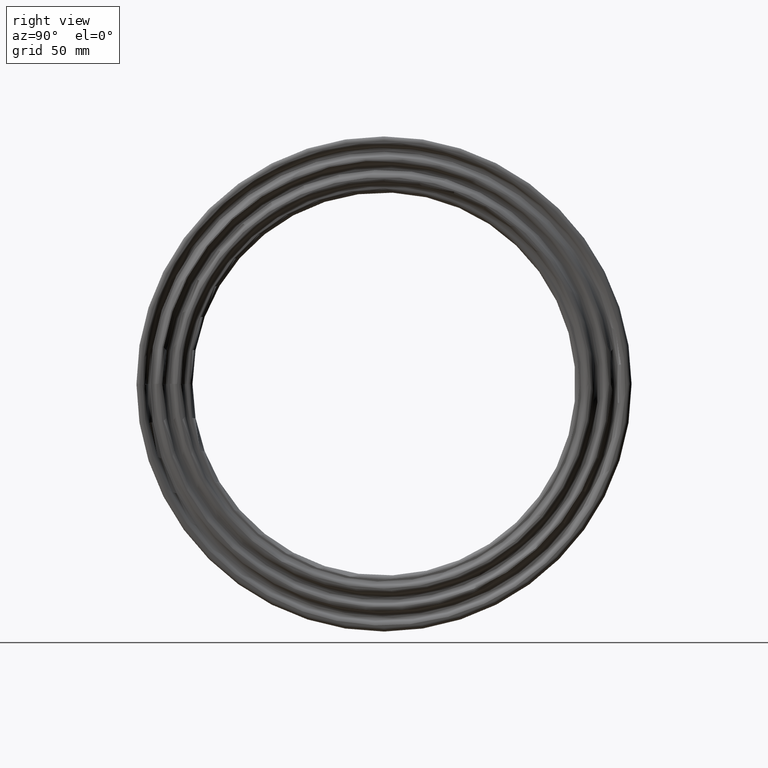
[diagram: clean part render]
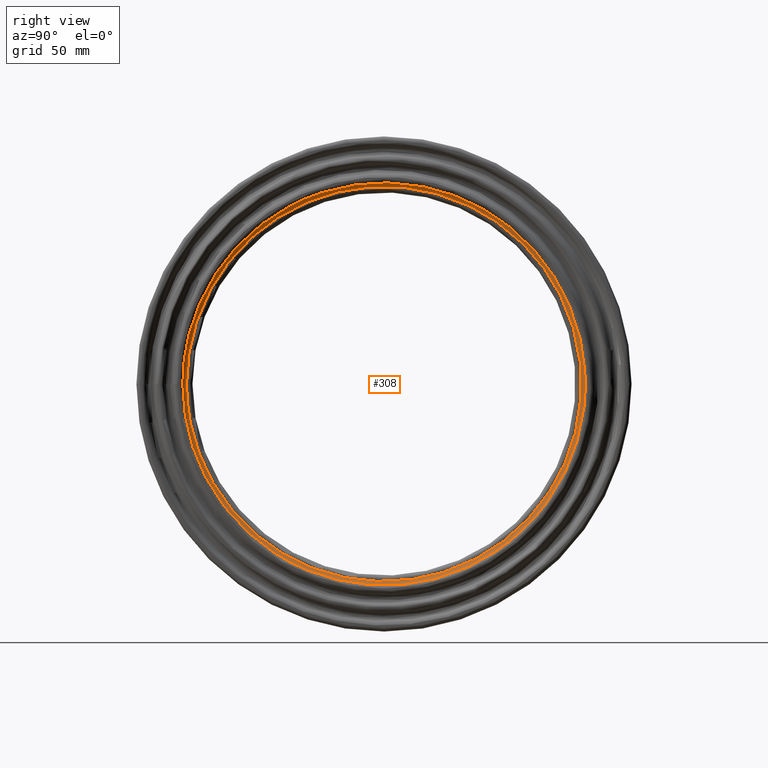
[diagram: same view with one face highlighted and labeled with its STEP entity id]
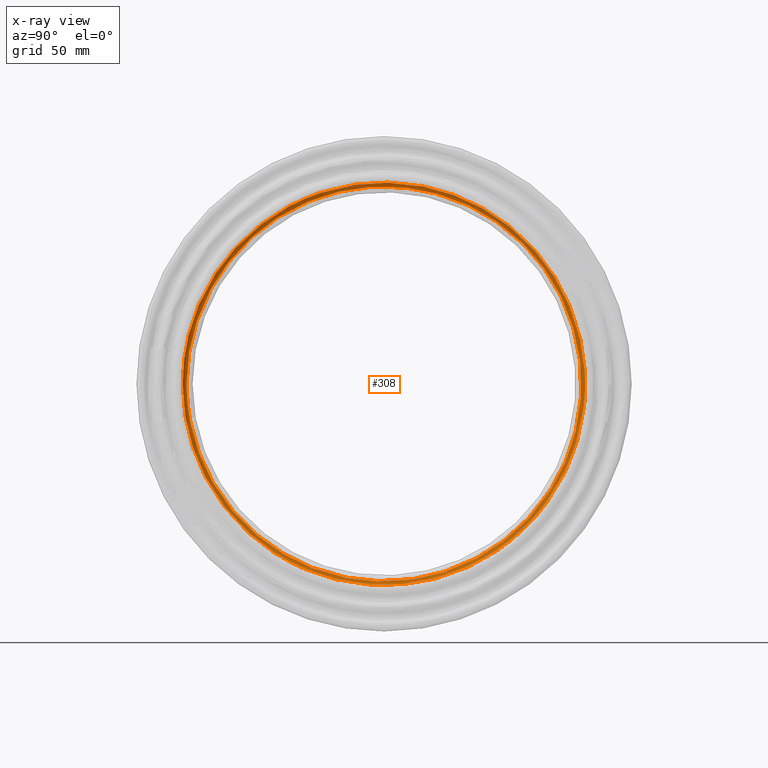
[diagram: x-ray of the same camera — body ghosted, the highlighted face saturated]
A machine part, right view. The second image highlights one B-rep face of the part: STEP entity #308.
The next image is the same camera in x-ray: the body ghosted, the highlighted face saturated — about 0% of this face is hidden behind the body in this view.
In plain terms, the highlighted face is a freeform B-spline surface patch.
Its self-contained STEP definition (entity closure, byte-faithful):
#15=B_SPLINE_SURFACE_WITH_KNOTS('',3,3,((#546,#547,#548,#549,#550,#551,
#552,#553,#554,#555,#556,#557,#558,#559,#560,#561,#562,#563,#564,#565,#566,
#567,#568,#569,#570,#571,#572,#573,#574,#575,#576,#577,#578,#579,#580,#581,
#582,#583,#584,#585,#586,#587,#588,#589,#590,#591,#592,#593,#594,#595,#596,
#597,#598,#599,#600,#601,#602,#603,#604,#605),(#606,#607,#608,#609,#610,
#611,#612,#613,#614,#615,#616,#617,#618,#619,#620,#621,#622,#623,#624,#625,
#626,#627,#628,#629,#630,#631,#632,#633,#634,#635,#636,#637,#638,#639,#640,
#641,#642,#643,#644,#645,#646,#647,#648,#649,#650,#651,#652,#653,#654,#655,
#656,#657,#658,#659,#660,#661,#662,#663,#664,#665),(#666,#667,#668,#669,
#670,#671,#672,#673,#674,#675,#676,#677,#678,#679,#680,#681,#682,#683,#684,
#685,#686,#687,#688,#689,#690,#691,#692,#693,#694,#695,#696,#697,#698,#699,
#700,#701,#702,#703,#704,#705,#706,#707,#708,#709,#710,#711,#712,#713,#714,
#715,#716,#717,#718,#719,#720,#721,#722,#723,#724,#725),(#726,#727,#728,
#729,#730,#731,#732,#733,#734,#735,#736,#737,#738,#739,#740,#741,#742,#743,
#744,#745,#746,#747,#748,#749,#750,#751,#752,#753,#754,#755,#756,#757,#758,
#759,#760,#761,#762,#763,#764,#765,#766,#767,#768,#769,#770,#771,#772,#773,
#774,#775,#776,#777,#778,#779,#780,#781,#782,#783,#784,#785),(#786,#787,
#788,#789,#790,#791,#792,#793,#794,#795,#796,#797,#798,#799,#800,#801,#802,
#803,#804,#805,#806,#807,#808,#809,#810,#811,#812,#813,#814,#815,#816,#817,
#818,#819,#820,#821,#822,#823,#824,#825,#826,#827,#828,#829,#830,#831,#832,
#833,#834,#835,#836,#837,#838,#839,#840,#841,#842,#843,#844,#845)),
 .UNSPECIFIED.,.F.,.T.,.F.,(4,1,4),(4,1,1,1,1,1,1,1,1,1,1,1,1,1,1,1,1,1,
1,1,1,1,1,1,1,1,1,1,1,1,1,1,1,1,1,1,1,1,1,1,1,1,1,1,1,1,1,1,1,1,1,1,1,1,
1,1,1,4),(0.,0.571428571428571,1.),(38.2405946998797,39.6063302248754,40.9720657498711,
42.3378012748669,43.7035367998626,46.435007849854,47.8007433748497,49.1664788998454,
50.9874595998397,52.8084402998339,54.6294209998282,55.5399113498253,56.4504016998225,
58.2713823998168,60.092363099811,61.0028534498082,61.9133437998053,63.7343244997996,
65.5553051997939,67.3762858997881,69.1972665997824,71.0182472997767,71.9287376497738,
74.6602086997652,77.3916797497566,78.3021700997538,80.1231507997481,80.5783959747466,
81.2612637372445,81.9441314997423,84.6756025497337,87.4070735997252,87.5777905403496,
88.089941362223,90.1385446497166,91.5042801747123,92.870015699708,93.2114495809569,
94.2357512247037,95.6014867496994,95.9429206309483,96.9672222746951,97.308656155944,
98.3329577996908,99.9263159121858,101.974919199679,103.795899899674,104.137333780923,
104.649484602796,105.161635424669,106.527370949665,109.258841999656,109.600275880905,
110.624577524652,111.990313049648,113.356048574644,113.697482455893,114.721784099639),
 .UNSPECIFIED.);
#24=B_SPLINE_CURVE_WITH_KNOTS('',3,(#483,#484,#485,#486,#487,#488,#489,
#490,#491,#492,#493,#494,#495,#496,#497,#498,#499,#500,#501,#502,#503,#504,
#505,#506,#507,#508,#509,#510,#511,#512,#513,#514,#515,#516,#517,#518,#519,
#520,#521,#522,#523,#524,#525,#526,#527,#528,#529,#530,#531,#532,#533,#534,
#535,#536,#537,#538,#539,#540,#541,#542),.UNSPECIFIED.,.T.,.F.,(4,1,1,1,
1,1,1,1,1,1,1,1,1,1,1,1,1,1,1,1,1,1,1,1,1,1,1,1,1,1,1,1,1,1,1,1,1,1,1,1,
1,1,1,1,1,1,1,1,1,1,1,1,1,1,1,1,1,4),(-114.721784099639,-113.697482455893,
-113.356048574644,-111.990313049648,-110.624577524652,-109.600275880905,
-109.258841999656,-106.527370949665,-105.161635424669,-104.649484602796,
-104.137333780923,-103.795899899674,-101.974919199679,-99.9263159121858,
-98.3329577996908,-97.308656155944,-96.9672222746951,-95.9429206309483,
-95.6014867496994,-94.2357512247037,-93.2114495809569,-92.870015699708,
-91.5042801747123,-90.1385446497166,-88.089941362223,-87.5777905403496,
-87.4070735997252,-84.6756025497337,-81.9441314997423,-81.2612637372445,
-80.5783959747466,-80.1231507997481,-78.3021700997538,-77.3916797497566,
-74.6602086997652,-71.9287376497738,-71.0182472997767,-69.1972665997824,
-67.3762858997881,-65.5553051997939,-63.7343244997996,-61.9133437998053,
-61.0028534498082,-60.092363099811,-58.2713823998168,-56.4504016998225,
-55.5399113498253,-54.6294209998282,-52.8084402998339,-50.9874595998397,
-49.1664788998454,-47.8007433748497,-46.435007849854,-43.7035367998626,
-42.3378012748669,-40.9720657498711,-39.6063302248754,-38.2405946998797),
 .UNSPECIFIED.);
#25=B_SPLINE_CURVE_WITH_KNOTS('',3,(#848,#849,#850,#851,#852,#853,#854,
#855,#856,#857,#858,#859,#860,#861,#862,#863,#864,#865,#866,#867,#868,#869,
#870,#871,#872,#873,#874,#875,#876,#877,#878,#879,#880,#881,#882,#883,#884,
#885,#886,#887,#888,#889,#890,#891,#892,#893,#894,#895,#896,#897,#898,#899,
#900,#901,#902,#903,#904,#905,#906,#907),.UNSPECIFIED.,.T.,.F.,(4,1,1,1,
1,1,1,1,1,1,1,1,1,1,1,1,1,1,1,1,1,1,1,1,1,1,1,1,1,1,1,1,1,1,1,1,1,1,1,1,
1,1,1,1,1,1,1,1,1,1,1,1,1,1,1,1,1,4),(38.2405946998797,39.6063302248754,
40.9720657498711,42.3378012748669,43.7035367998626,46.435007849854,47.8007433748497,
49.1664788998454,50.9874595998397,52.8084402998339,54.6294209998282,55.5399113498253,
56.4504016998225,58.2713823998168,60.092363099811,61.0028534498082,61.9133437998053,
63.7343244997996,65.5553051997939,67.3762858997881,69.1972665997824,71.0182472997767,
71.9287376497738,74.6602086997652,77.3916797497566,78.3021700997538,80.1231507997481,
80.5783959747466,81.2612637372445,81.9441314997423,84.6756025497337,87.4070735997252,
87.5777905403496,88.089941362223,90.1385446497166,91.5042801747123,92.870015699708,
93.2114495809569,94.2357512247037,95.6014867496994,95.9429206309483,96.9672222746951,
97.308656155944,98.3329577996908,99.9263159121858,101.974919199679,103.795899899674,
104.137333780923,104.649484602796,105.161635424669,106.527370949665,109.258841999656,
109.600275880905,110.624577524652,111.990313049648,113.356048574644,113.697482455893,
114.721784099639),.UNSPECIFIED.);
#69=FACE_OUTER_BOUND('',#100,.T.);
#100=EDGE_LOOP('',(#235,#236,#237,#238));
#148=CIRCLE('',#341,2.49999999999999);
#170=VERTEX_POINT('',#482);
#172=VERTEX_POINT('',#846);
#198=EDGE_CURVE('',#170,#170,#24,.T.);
#200=EDGE_CURVE('',#172,#170,#148,.T.);
#201=EDGE_CURVE('',#172,#172,#25,.T.);
#235=ORIENTED_EDGE('',*,*,#200,.T.);
#236=ORIENTED_EDGE('',*,*,#198,.T.);
#237=ORIENTED_EDGE('',*,*,#200,.F.);
#238=ORIENTED_EDGE('',*,*,#201,.T.);
#308=ADVANCED_FACE('',(#69),#15,.T.);
#341=AXIS2_PLACEMENT_3D('',#847,#395,#396);
#395=DIRECTION('center_axis',(0.,0.000811828910623102,-0.999999670466856));
#396=DIRECTION('ref_axis',(-0.4,-0.916514836969052,-0.000744053486856781));
#482=CARTESIAN_POINT('',(128.,-122.459050617382,-0.0994158304195446));
#483=CARTESIAN_POINT('Ctrl Pts',(128.,-122.459058042958,-0.100492250923008));
#484=CARTESIAN_POINT('Ctrl Pts',(128.,-122.462137081849,3.32177095960661));
#485=CARTESIAN_POINT('Ctrl Pts',(128.,-122.275025310245,7.87189128922752));
#486=CARTESIAN_POINT('Ctrl Pts',(128.,-121.388535819742,16.9910339683083));
#487=CARTESIAN_POINT('Ctrl Pts',(128.,-119.66633006052,27.2000556870449));
#488=CARTESIAN_POINT('Ctrl Pts',(128.,-116.166875605104,39.3733919225342));
#489=CARTESIAN_POINT('Ctrl Pts',(128.,-112.791834695813,47.8627411542021));
#490=CARTESIAN_POINT('Ctrl Pts',(128.,-107.049004395079,60.2705007705905));
#491=CARTESIAN_POINT('Ctrl Pts',(128.,-99.0451250536366,73.046323130571));
#492=CARTESIAN_POINT('Ctrl Pts',(128.,-88.7178986493268,84.5957658146479));
#493=CARTESIAN_POINT('Ctrl Pts',(128.,-82.9741710526155,90.1135613763411));
#494=CARTESIAN_POINT('Ctrl Pts',(128.,-79.5433166065945,93.1396578218315));
#495=CARTESIAN_POINT('Ctrl Pts',(128.,-72.6284789384625,98.8326514448616));
#496=CARTESIAN_POINT('Ctrl Pts',(128.,-60.8414288512584,106.872382220134));
#497=CARTESIAN_POINT('Ctrl Pts',(128.,-44.2618054179648,114.669497347039));
#498=CARTESIAN_POINT('Ctrl Pts',(128.,-29.2691219392055,119.157615499959));
#499=CARTESIAN_POINT('Ctrl Pts',(128.,-19.4396504449831,120.978125497897));
#500=CARTESIAN_POINT('Ctrl Pts',(128.,-11.4771094203487,121.989741037058));
#501=CARTESIAN_POINT('Ctrl Pts',(128.,-5.7468193620638,122.393731874944));
#502=CARTESIAN_POINT('Ctrl Pts',(128.,3.36561214263529,122.523615368077));
#503=CARTESIAN_POINT('Ctrl Pts',(128.,12.4946297762966,122.020215253236));
#504=CARTESIAN_POINT('Ctrl Pts',(128.,21.5934085090093,120.611091905303));
#505=CARTESIAN_POINT('Ctrl Pts',(128.,30.580176201898,118.697589514062));
#506=CARTESIAN_POINT('Ctrl Pts',(128.,40.5382369839896,115.824292943709));
#507=CARTESIAN_POINT('Ctrl Pts',(128.,55.2722132664164,109.728827301121));
#508=CARTESIAN_POINT('Ctrl Pts',(128.,66.7092467451824,102.999614949993));
#509=CARTESIAN_POINT('Ctrl Pts',(128.,74.0937366024141,97.5234211345415));
#510=CARTESIAN_POINT('Ctrl Pts',(128.,83.1135460704598,90.4253584122818));
#511=CARTESIAN_POINT('Ctrl Pts',(128.,96.4682421283379,77.0986771739098));
#512=CARTESIAN_POINT('Ctrl Pts',(128.,107.614722926459,59.3949193025453));
#513=CARTESIAN_POINT('Ctrl Pts',(128.,113.188519468817,46.8974360988697));
#514=CARTESIAN_POINT('Ctrl Pts',(128.,115.362113098601,41.2193074366228));
#515=CARTESIAN_POINT('Ctrl Pts',(128.,118.466566258768,31.7976789138544));
#516=CARTESIAN_POINT('Ctrl Pts',(128.,120.867448068904,21.2888878037509));
#517=CARTESIAN_POINT('Ctrl Pts',(128.,122.913957441559,3.05837097254548));
#518=CARTESIAN_POINT('Ctrl Pts',(128.,122.115785054967,-18.3162417045906));
#519=CARTESIAN_POINT('Ctrl Pts',(128.,116.590093788173,-39.0386133880449));
#520=CARTESIAN_POINT('Ctrl Pts',(128.,109.318593058096,-55.7661789375047));
#521=CARTESIAN_POINT('Ctrl Pts',(128.,101.70617086988,-69.0378045923205));
#522=CARTESIAN_POINT('Ctrl Pts',(128.,90.1935615703965,-83.5065468418019));
#523=CARTESIAN_POINT('Ctrl Pts',(128.,76.8396490012886,-95.9318495595328));
#524=CARTESIAN_POINT('Ctrl Pts',(128.,61.6180984673473,-106.366888004346));
#525=CARTESIAN_POINT('Ctrl Pts',(128.,47.7985678357714,-113.032389423036));
#526=CARTESIAN_POINT('Ctrl Pts',(128.,36.3392510704786,-117.060198396686));
#527=CARTESIAN_POINT('Ctrl Pts',(128.,24.5355317967793,-120.253334800662));
#528=CARTESIAN_POINT('Ctrl Pts',(128.,9.30145102200197,-122.564257530456));
#529=CARTESIAN_POINT('Ctrl Pts',(128.,-5.94311760942025,-122.579474916451));
#530=CARTESIAN_POINT('Ctrl Pts',(128.,-18.0591925185306,-121.235306363289));
#531=CARTESIAN_POINT('Ctrl Pts',(128.,-30.1323937747762,-118.974636248499));
#532=CARTESIAN_POINT('Ctrl Pts',(128.,-44.8027346875423,-114.455372153444));
#533=CARTESIAN_POINT('Ctrl Pts',(128.,-61.2594956300432,-106.560847786675));
#534=CARTESIAN_POINT('Ctrl Pts',(128.,-75.2859929302152,-97.0403800348178));
#535=CARTESIAN_POINT('Ctrl Pts',(128.,-86.6870098196937,-86.8491262986416));
#536=CARTESIAN_POINT('Ctrl Pts',(128.,-98.8719284884497,-73.2757186355523));
#537=CARTESIAN_POINT('Ctrl Pts',(128.,-108.786282519494,-57.5336812063203));
#538=CARTESIAN_POINT('Ctrl Pts',(128.,-115.773659409927,-40.6727363180451));
#539=CARTESIAN_POINT('Ctrl Pts',(128.,-119.607236452051,-27.4663810030126));
#540=CARTESIAN_POINT('Ctrl Pts',(128.,-121.936829469286,-13.8239378514909));
#541=CARTESIAN_POINT('Ctrl Pts',(128.,-122.454952657771,-4.6635098649627));
#542=CARTESIAN_POINT('Ctrl Pts',(128.,-122.459058042958,-0.10049225092322));
#546=CARTESIAN_POINT('Ctrl Pts',(128.,-122.459058042958,-0.100492250923007));
#547=CARTESIAN_POINT('Ctrl Pts',(128.,-122.454952657771,-4.66350986496249));
#548=CARTESIAN_POINT('Ctrl Pts',(128.,-121.936829469286,-13.8239378514909));
#549=CARTESIAN_POINT('Ctrl Pts',(128.,-119.607236452051,-27.4663810030126));
#550=CARTESIAN_POINT('Ctrl Pts',(128.,-115.773659409927,-40.6727363180451));
#551=CARTESIAN_POINT('Ctrl Pts',(128.,-108.786282519494,-57.5336812063203));
#552=CARTESIAN_POINT('Ctrl Pts',(128.,-98.8719284884497,-73.2757186355523));
#553=CARTESIAN_POINT('Ctrl Pts',(128.,-86.6870098196937,-86.8491262986416));
#554=CARTESIAN_POINT('Ctrl Pts',(128.,-75.2859929302152,-97.0403800348178));
#555=CARTESIAN_POINT('Ctrl Pts',(128.,-61.2594956300432,-106.560847786675));
#556=CARTESIAN_POINT('Ctrl Pts',(128.,-44.8027346875423,-114.455372153444));
#557=CARTESIAN_POINT('Ctrl Pts',(128.,-30.1323937747762,-118.974636248499));
#558=CARTESIAN_POINT('Ctrl Pts',(128.,-18.0591925185306,-121.235306363289));
#559=CARTESIAN_POINT('Ctrl Pts',(128.,-5.94311760942025,-122.579474916451));
#560=CARTESIAN_POINT('Ctrl Pts',(128.,9.30145102200197,-122.564257530456));
#561=CARTESIAN_POINT('Ctrl Pts',(128.,24.5355317967793,-120.253334800662));
#562=CARTESIAN_POINT('Ctrl Pts',(128.,36.3392510704786,-117.060198396686));
#563=CARTESIAN_POINT('Ctrl Pts',(128.,47.7985678357714,-113.032389423036));
#564=CARTESIAN_POINT('Ctrl Pts',(128.,61.6180984673473,-106.366888004346));
#565=CARTESIAN_POINT('Ctrl Pts',(128.,76.8396490012886,-95.9318495595328));
#566=CARTESIAN_POINT('Ctrl Pts',(128.,90.1935615703965,-83.5065468418019));
#567=CARTESIAN_POINT('Ctrl Pts',(128.,101.70617086988,-69.0378045923205));
#568=CARTESIAN_POINT('Ctrl Pts',(128.,109.318593058096,-55.7661789375047));
#569=CARTESIAN_POINT('Ctrl Pts',(128.,116.590093788173,-39.0386133880449));
#570=CARTESIAN_POINT('Ctrl Pts',(128.,122.115785054967,-18.3162417045906));
#571=CARTESIAN_POINT('Ctrl Pts',(128.,122.913957441559,3.05837097254548));
#572=CARTESIAN_POINT('Ctrl Pts',(128.,120.867448068904,21.2888878037509));
#573=CARTESIAN_POINT('Ctrl Pts',(128.,118.466566258768,31.7976789138544));
#574=CARTESIAN_POINT('Ctrl Pts',(128.,115.362113098601,41.2193074366228));
#575=CARTESIAN_POINT('Ctrl Pts',(128.,113.188519468817,46.8974360988697));
#576=CARTESIAN_POINT('Ctrl Pts',(128.,107.614722926459,59.3949193025453));
#577=CARTESIAN_POINT('Ctrl Pts',(128.,96.4682421283379,77.0986771739098));
#578=CARTESIAN_POINT('Ctrl Pts',(128.,83.1135460704598,90.4253584122818));
#579=CARTESIAN_POINT('Ctrl Pts',(128.,74.0937366024141,97.5234211345415));
#580=CARTESIAN_POINT('Ctrl Pts',(128.,66.7092467451824,102.999614949993));
#581=CARTESIAN_POINT('Ctrl Pts',(128.,55.2722132664164,109.728827301121));
#582=CARTESIAN_POINT('Ctrl Pts',(128.,40.5382369839896,115.824292943709));
#583=CARTESIAN_POINT('Ctrl Pts',(128.,30.580176201898,118.697589514062));
#584=CARTESIAN_POINT('Ctrl Pts',(128.,21.5934085090093,120.611091905303));
#585=CARTESIAN_POINT('Ctrl Pts',(128.,12.4946297762966,122.020215253236));
#586=CARTESIAN_POINT('Ctrl Pts',(128.,3.36561214263529,122.523615368077));
#587=CARTESIAN_POINT('Ctrl Pts',(128.,-5.7468193620638,122.393731874944));
#588=CARTESIAN_POINT('Ctrl Pts',(128.,-11.4771094203487,121.989741037058));
#589=CARTESIAN_POINT('Ctrl Pts',(128.,-19.4396504449831,120.978125497897));
#590=CARTESIAN_POINT('Ctrl Pts',(128.,-29.2691219392055,119.157615499959));
#591=CARTESIAN_POINT('Ctrl Pts',(128.,-44.2618054179648,114.669497347039));
#592=CARTESIAN_POINT('Ctrl Pts',(128.,-60.8414288512584,106.872382220134));
#593=CARTESIAN_POINT('Ctrl Pts',(128.,-72.6284789384625,98.8326514448616));
#594=CARTESIAN_POINT('Ctrl Pts',(128.,-79.5433166065945,93.1396578218315));
#595=CARTESIAN_POINT('Ctrl Pts',(128.,-82.9741710526155,90.1135613763411));
#596=CARTESIAN_POINT('Ctrl Pts',(128.,-88.7178986493268,84.5957658146479));
#597=CARTESIAN_POINT('Ctrl Pts',(128.,-99.0451250536366,73.046323130571));
#598=CARTESIAN_POINT('Ctrl Pts',(128.,-107.049004395079,60.2705007705905));
#599=CARTESIAN_POINT('Ctrl Pts',(128.,-112.791834695813,47.8627411542021));
#600=CARTESIAN_POINT('Ctrl Pts',(128.,-116.166875605104,39.3733919225342));
#601=CARTESIAN_POINT('Ctrl Pts',(128.,-119.66633006052,27.2000556870449));
#602=CARTESIAN_POINT('Ctrl Pts',(128.,-121.388535819742,16.9910339683083));
#603=CARTESIAN_POINT('Ctrl Pts',(128.,-122.275025310245,7.87189128922752));
#604=CARTESIAN_POINT('Ctrl Pts',(128.,-122.462137081849,3.32177095960661));
#605=CARTESIAN_POINT('Ctrl Pts',(128.,-122.459058042958,-0.100492250923007));
#606=CARTESIAN_POINT('Ctrl Pts',(128.,-123.011096017456,-0.100948712166627));
#607=CARTESIAN_POINT('Ctrl Pts',(128.,-123.006972099663,-4.68453626279056));
#608=CARTESIAN_POINT('Ctrl Pts',(128.,-122.486513687954,-13.8862533215314));
#609=CARTESIAN_POINT('Ctrl Pts',(128.,-120.146419020079,-27.5901952063248));
#610=CARTESIAN_POINT('Ctrl Pts',(128.,-116.295561110779,-40.8560848475345));
#611=CARTESIAN_POINT('Ctrl Pts',(128.,-109.276681501123,-57.7930448290249));
#612=CARTESIAN_POINT('Ctrl Pts',(128.,-99.3176404574985,-73.6060363699534));
#613=CARTESIAN_POINT('Ctrl Pts',(128.,-87.0777886591031,-87.2406385369529));
#614=CARTESIAN_POINT('Ctrl Pts',(128.,-75.6253742220979,-97.4778341112051));
#615=CARTESIAN_POINT('Ctrl Pts',(128.,-61.5356561985723,-107.041214501292));
#616=CARTESIAN_POINT('Ctrl Pts',(128.,-45.0046942937032,-114.971333565491));
#617=CARTESIAN_POINT('Ctrl Pts',(128.,-30.2682341416935,-119.510965072421));
#618=CARTESIAN_POINT('Ctrl Pts',(128.,-18.1406052434074,-121.78182739646));
#619=CARTESIAN_POINT('Ctrl Pts',(128.,-5.96990803932605,-123.132056070849));
#620=CARTESIAN_POINT('Ctrl Pts',(128.,9.34338183084822,-123.116769541231));
#621=CARTESIAN_POINT('Ctrl Pts',(128.,24.6461374003974,-120.795429519825));
#622=CARTESIAN_POINT('Ctrl Pts',(128.,36.5030650874248,-117.587899038001));
#623=CARTESIAN_POINT('Ctrl Pts',(128.,48.014046404782,-113.541930506616));
#624=CARTESIAN_POINT('Ctrl Pts',(128.,61.8958682972406,-106.846383403571));
#625=CARTESIAN_POINT('Ctrl Pts',(128.,77.1860342208905,-96.3643074271789));
#626=CARTESIAN_POINT('Ctrl Pts',(128.,90.6001501728618,-83.8829881172861));
#627=CARTESIAN_POINT('Ctrl Pts',(128.,102.164655330071,-69.3490231612633));
#628=CARTESIAN_POINT('Ctrl Pts',(128.,109.811394708728,-56.0175707161365));
#629=CARTESIAN_POINT('Ctrl Pts',(128.,117.115675443188,-39.2145934063983));
#630=CARTESIAN_POINT('Ctrl Pts',(128.,122.666275404151,-18.398816611877));
#631=CARTESIAN_POINT('Ctrl Pts',(128.,123.468045928421,3.07216393236208));
#632=CARTESIAN_POINT('Ctrl Pts',(128.,121.412312022609,21.3848519535214));
#633=CARTESIAN_POINT('Ctrl Pts',(128.,119.000605898046,31.9410220111259));
#634=CARTESIAN_POINT('Ctrl Pts',(128.,115.882159998154,41.4051182834921));
#635=CARTESIAN_POINT('Ctrl Pts',(128.,113.698765362046,47.1088486469384));
#636=CARTESIAN_POINT('Ctrl Pts',(128.,108.099843515531,59.6626699658552));
#637=CARTESIAN_POINT('Ctrl Pts',(128.,96.9031148559895,77.4462310924662));
#638=CARTESIAN_POINT('Ctrl Pts',(128.,83.4882184306394,90.8329905598156));
#639=CARTESIAN_POINT('Ctrl Pts',(128.,74.4277461173693,97.963050960074));
#640=CARTESIAN_POINT('Ctrl Pts',(128.,67.0099593124888,103.463936539074));
#641=CARTESIAN_POINT('Ctrl Pts',(128.,55.5213865110371,110.223473690124));
#642=CARTESIAN_POINT('Ctrl Pts',(128.,40.7209745086597,116.346424261699));
#643=CARTESIAN_POINT('Ctrl Pts',(128.,30.7180372807939,119.232669200396));
#644=CARTESIAN_POINT('Ctrl Pts',(128.,21.6907454501492,121.154800346083));
#645=CARTESIAN_POINT('Ctrl Pts',(128.,12.5509597542135,122.57027433025));
#646=CARTESIAN_POINT('Ctrl Pts',(128.,3.38078487136079,123.075944620946));
#647=CARTESIAN_POINT('Ctrl Pts',(128.,-5.77272758699882,122.94547516977));
#648=CARTESIAN_POINT('Ctrl Pts',(128.,-11.5288466316984,122.539663761309));
#649=CARTESIAN_POINT('Ctrl Pts',(128.,-19.5272829686194,121.52348744526));
#650=CARTESIAN_POINT('Ctrl Pts',(128.,-29.4010661099547,119.69477091569));
#651=CARTESIAN_POINT('Ctrl Pts',(128.,-44.461334040154,115.186420666494));
#652=CARTESIAN_POINT('Ctrl Pts',(128.,-61.1157006344307,107.354155497427));
#653=CARTESIAN_POINT('Ctrl Pts',(128.,-72.9558813356654,99.2781844380452));
#654=CARTESIAN_POINT('Ctrl Pts',(128.,-79.9018920051052,93.5595270169617));
#655=CARTESIAN_POINT('Ctrl Pts',(128.,-83.3482144564477,90.5197864750096));
#656=CARTESIAN_POINT('Ctrl Pts',(128.,-89.1178375317891,84.9771159374893));
#657=CARTESIAN_POINT('Ctrl Pts',(128.,-99.4916152999223,73.3756060548259));
#658=CARTESIAN_POINT('Ctrl Pts',(128.,-107.531571430472,60.5422058165587));
#659=CARTESIAN_POINT('Ctrl Pts',(128.,-113.30029390198,48.0785014970673));
#660=CARTESIAN_POINT('Ctrl Pts',(128.,-116.690549329239,39.5508852222006));
#661=CARTESIAN_POINT('Ctrl Pts',(128.,-120.205778607942,27.3226697028125));
#662=CARTESIAN_POINT('Ctrl Pts',(128.,-121.93574755909,17.0676329699906));
#663=CARTESIAN_POINT('Ctrl Pts',(128.,-122.826233907547,7.90737626736537));
#664=CARTESIAN_POINT('Ctrl Pts',(128.,-123.0141889558,3.33674195080133));
#665=CARTESIAN_POINT('Ctrl Pts',(128.,-123.011096017456,-0.100948712166627));
#666=CARTESIAN_POINT('Ctrl Pts',(128.332453996569,-123.973954029769,-0.101734556007417));
#667=CARTESIAN_POINT('Ctrl Pts',(128.332453996569,-123.969797864707,-4.72119955119507));
#668=CARTESIAN_POINT('Ctrl Pts',(128.332453996569,-123.445265055466,-13.9949491960375));
#669=CARTESIAN_POINT('Ctrl Pts',(128.332453996569,-121.086853496311,-27.8061581363261));
#670=CARTESIAN_POINT('Ctrl Pts',(128.332453996569,-117.20585251859,-41.1758842013286));
#671=CARTESIAN_POINT('Ctrl Pts',(128.332453996569,-110.132038352912,-58.2454079242589));
#672=CARTESIAN_POINT('Ctrl Pts',(128.332453996569,-100.095035946536,-74.1821867776469));
#673=CARTESIAN_POINT('Ctrl Pts',(128.332453996569,-87.7593831752855,-87.923504501529));
#674=CARTESIAN_POINT('Ctrl Pts',(128.332453996569,-76.2173291014297,-98.2408304204687));
#675=CARTESIAN_POINT('Ctrl Pts',(128.332453996569,-62.0173127331808,-107.87907362026));
#676=CARTESIAN_POINT('Ctrl Pts',(128.332453996569,-45.3569749102986,-115.871256608005));
#677=CARTESIAN_POINT('Ctrl Pts',(128.332453996569,-30.5051492201778,-120.44642812496));
#678=CARTESIAN_POINT('Ctrl Pts',(128.332453996569,-18.2825954162553,-122.735063852347));
#679=CARTESIAN_POINT('Ctrl Pts',(128.332453996569,-6.01663792475455,-124.0958604506));
#680=CARTESIAN_POINT('Ctrl Pts',(128.332453996569,9.41651574632659,-124.080454949778));
#681=CARTESIAN_POINT('Ctrl Pts',(128.332453996569,24.8390516141861,-121.740944593515));
#682=CARTESIAN_POINT('Ctrl Pts',(128.332453996569,36.7887908595694,-118.508306977976));
#683=CARTESIAN_POINT('Ctrl Pts',(128.332453996569,48.3898649850968,-114.430672060094));
#684=CARTESIAN_POINT('Ctrl Pts',(128.332453996569,62.3803535083265,-107.682713684667));
#685=CARTESIAN_POINT('Ctrl Pts',(128.332453996569,77.7902048459737,-97.1185864815361));
#686=CARTESIAN_POINT('Ctrl Pts',(128.332453996569,91.3093125884697,-84.5395759158139));
#687=CARTESIAN_POINT('Ctrl Pts',(128.332453996569,102.964340706514,-69.8918458059309));
#688=CARTESIAN_POINT('Ctrl Pts',(128.332453996569,110.67093316089,-56.4560415305503));
#689=CARTESIAN_POINT('Ctrl Pts',(128.332453996569,118.032386824926,-39.5215466251225));
#690=CARTESIAN_POINT('Ctrl Pts',(128.332453996569,123.626434580021,-18.5428236225616));
#691=CARTESIAN_POINT('Ctrl Pts',(128.332453996569,124.434480857582,3.09620347825561));
#692=CARTESIAN_POINT('Ctrl Pts',(128.332453996569,122.36265462246,21.5522460027696));
#693=CARTESIAN_POINT('Ctrl Pts',(128.332453996569,119.932072702072,32.1910360399692));
#694=CARTESIAN_POINT('Ctrl Pts',(128.332453996569,116.789215014825,41.7292171415793));
#695=CARTESIAN_POINT('Ctrl Pts',(128.332453996569,114.588733291177,47.4775866064224));
#696=CARTESIAN_POINT('Ctrl Pts',(128.332453996569,108.945985107455,60.1296715256806));
#697=CARTESIAN_POINT('Ctrl Pts',(128.332453996569,97.6616153435907,78.0524371112196));
#698=CARTESIAN_POINT('Ctrl Pts',(128.332453996569,84.1417128107137,91.5439772433192));
#699=CARTESIAN_POINT('Ctrl Pts',(128.332453996569,75.0103231103416,98.7298474793025));
#700=CARTESIAN_POINT('Ctrl Pts',(128.332453996569,67.5344844391212,104.273783944076));
#701=CARTESIAN_POINT('Ctrl Pts',(128.332453996569,55.955963167999,111.086243384885));
#702=CARTESIAN_POINT('Ctrl Pts',(128.332453996569,41.0397221782851,117.257112085865));
#703=CARTESIAN_POINT('Ctrl Pts',(128.332453996569,30.9584704740288,120.165954203213));
#704=CARTESIAN_POINT('Ctrl Pts',(128.332453996569,21.8605338142038,122.103127140267));
#705=CARTESIAN_POINT('Ctrl Pts',(128.332453996569,12.6491950315666,123.529682629853));
#706=CARTESIAN_POINT('Ctrl Pts',(128.332453996569,3.40724670775137,124.039309906435));
#707=CARTESIAN_POINT('Ctrl Pts',(128.332453996569,-5.81791068136243,123.907819783257));
#708=CARTESIAN_POINT('Ctrl Pts',(128.332453996569,-11.6190887425369,123.498831176856));
#709=CARTESIAN_POINT('Ctrl Pts',(128.332453996569,-19.6801312720675,122.474701430683));
#710=CARTESIAN_POINT('Ctrl Pts',(128.332453996569,-29.6311993015473,120.631670519616));
#711=CARTESIAN_POINT('Ctrl Pts',(128.332453996569,-44.809352161968,116.088031490551));
#712=CARTESIAN_POINT('Ctrl Pts',(128.332453996569,-61.5940752279404,108.194461394723));
#713=CARTESIAN_POINT('Ctrl Pts',(128.332453996569,-73.5269397312143,100.055273492373));
#714=CARTESIAN_POINT('Ctrl Pts',(128.332453996569,-80.5273179860269,94.2918539700254));
#715=CARTESIAN_POINT('Ctrl Pts',(128.332453996569,-84.0006137985487,91.2283234463413));
#716=CARTESIAN_POINT('Ctrl Pts',(128.332453996569,-89.8153941746674,85.6422695321018));
#717=CARTESIAN_POINT('Ctrl Pts',(128.332453996569,-100.270375672925,73.9499536795271));
#718=CARTESIAN_POINT('Ctrl Pts',(128.332453996569,-108.373269098385,61.016082692178));
#719=CARTESIAN_POINT('Ctrl Pts',(128.332453996569,-114.187140897225,48.4548340154154));
#720=CARTESIAN_POINT('Ctrl Pts',(128.332453996569,-117.603933187204,39.8604655690534));
#721=CARTESIAN_POINT('Ctrl Pts',(128.332453996569,-121.146678231111,27.5365381117351));
#722=CARTESIAN_POINT('Ctrl Pts',(128.332453996569,-122.890188864614,17.2012227078483));
#723=CARTESIAN_POINT('Ctrl Pts',(128.332453996569,-123.787644638957,7.96927181514578));
#724=CARTESIAN_POINT('Ctrl Pts',(128.332453996569,-123.977071153565,3.36286419038333));
#725=CARTESIAN_POINT('Ctrl Pts',(128.332453996569,-123.973954029769,-0.101734556007417));
#726=CARTESIAN_POINT('Ctrl Pts',(129.120536716282,-124.584734174054,-0.102239249919579));
#727=CARTESIAN_POINT('Ctrl Pts',(129.120536716282,-124.580557506875,-4.7444630086252));
#728=CARTESIAN_POINT('Ctrl Pts',(129.120536716283,-124.053440940383,-14.0638958303948));
#729=CARTESIAN_POINT('Ctrl Pts',(129.120536716282,-121.683410252322,-27.9431476188961));
#730=CARTESIAN_POINT('Ctrl Pts',(129.120536716283,-117.783289490951,-41.3787429504683));
#731=CARTESIAN_POINT('Ctrl Pts',(129.120536716283,-110.674620810988,-58.5323698196711));
#732=CARTESIAN_POINT('Ctrl Pts',(129.120536716283,-100.588175643586,-74.5476539742976));
#733=CARTESIAN_POINT('Ctrl Pts',(129.120536716283,-88.191744746299,-88.3566772576127));
#734=CARTESIAN_POINT('Ctrl Pts',(129.120536716283,-76.5928241714557,-98.7248336414831));
#735=CARTESIAN_POINT('Ctrl Pts',(129.120536716283,-62.3228588134304,-108.410556295309));
#736=CARTESIAN_POINT('Ctrl Pts',(129.120536716283,-45.5804257938601,-116.442120944522));
#737=CARTESIAN_POINT('Ctrl Pts',(129.120536716283,-30.6554437851479,-121.039827669743));
#738=CARTESIAN_POINT('Ctrl Pts',(129.120536716283,-18.3726709473661,-123.33974003326));
#739=CARTESIAN_POINT('Ctrl Pts',(129.120536716283,-6.04627919198706,-124.707241540142));
#740=CARTESIAN_POINT('Ctrl Pts',(129.120536716283,9.46290835531522,-124.691759591717));
#741=CARTESIAN_POINT('Ctrl Pts',(129.120536716283,24.9614266312232,-122.340723423057));
#742=CARTESIAN_POINT('Ctrl Pts',(129.120536716283,36.9700363788846,-119.092160022801));
#743=CARTESIAN_POINT('Ctrl Pts',(129.120536716283,48.6282720093994,-114.99443343498));
#744=CARTESIAN_POINT('Ctrl Pts',(129.120536716283,62.687680808838,-108.213232028561));
#745=CARTESIAN_POINT('Ctrl Pts',(129.120536716282,78.1734491153942,-97.5970617526493));
#746=CARTESIAN_POINT('Ctrl Pts',(129.120536716283,91.7591659937935,-84.9560742903666));
#747=CARTESIAN_POINT('Ctrl Pts',(129.120536716282,103.471612414477,-70.2361810005406));
#748=CARTESIAN_POINT('Ctrl Pts',(129.120536716283,111.216173655552,-56.7341836992739));
#749=CARTESIAN_POINT('Ctrl Pts',(129.120536716282,118.613895381542,-39.7162529776255));
#750=CARTESIAN_POINT('Ctrl Pts',(129.120536716283,124.235502433599,-18.6341846670461));
#751=CARTESIAN_POINT('Ctrl Pts',(129.120536716282,125.047529722946,3.1114635509624));
#752=CARTESIAN_POINT('Ctrl Pts',(129.120536716283,122.965497276281,21.6584221425582));
#753=CARTESIAN_POINT('Ctrl Pts',(129.120536716283,120.522939356369,32.349632118636));
#754=CARTESIAN_POINT('Ctrl Pts',(129.120536716283,117.364599775373,41.9348003790398));
#755=CARTESIAN_POINT('Ctrl Pts',(129.120536716283,115.153274377374,47.7114953171523));
#756=CARTESIAN_POINT('Ctrl Pts',(129.120536716283,109.482727213142,60.4259132491361));
#757=CARTESIAN_POINT('Ctrl Pts',(129.120536716282,98.1427627504745,78.4369743405266));
#758=CARTESIAN_POINT('Ctrl Pts',(129.120536716283,84.5562537738836,91.99498537283));
#759=CARTESIAN_POINT('Ctrl Pts',(129.120536716283,75.3798745149472,99.2162581443633));
#760=CARTESIAN_POINT('Ctrl Pts',(129.120536716283,67.8671965779027,104.787513281978));
#761=CARTESIAN_POINT('Ctrl Pts',(129.120536716282,56.2316499193681,111.633525365706));
#762=CARTESIAN_POINT('Ctrl Pts',(129.120536716283,41.2419053671582,117.834802974639));
#763=CARTESIAN_POINT('Ctrl Pts',(129.120536716283,31.1110005641109,120.757971712518));
#764=CARTESIAN_POINT('Ctrl Pts',(129.120536716283,21.9682288206083,122.704691311132));
#765=CARTESIAN_POINT('Ctrl Pts',(129.120536716283,12.7115185761982,124.13827336394));
#766=CARTESIAN_POINT('Ctrl Pts',(129.120536716283,3.42403388709786,124.650412298554));
#767=CARTESIAN_POINT('Ctrl Pts',(129.120536716283,-5.846575603331,124.518273910123));
#768=CARTESIAN_POINT('Ctrl Pts',(129.120536716283,-11.6763313810576,124.107270948281));
#769=CARTESIAN_POINT('Ctrl Pts',(129.120536716283,-19.7770887654737,123.078095161321));
#770=CARTESIAN_POINT('Ctrl Pts',(129.120536716283,-29.777183531873,121.225984443129));
#771=CARTESIAN_POINT('Ctrl Pts',(129.120536716282,-45.030112644373,116.659960420838));
#772=CARTESIAN_POINT('Ctrl Pts',(129.120536716283,-61.8975319476315,108.72750008941));
#773=CARTESIAN_POINT('Ctrl Pts',(129.120536716282,-73.8891811365273,100.54821535741));
#774=CARTESIAN_POINT('Ctrl Pts',(129.120536716283,-80.9240493696704,94.7564011738871));
#775=CARTESIAN_POINT('Ctrl Pts',(129.120536716283,-84.4144589434909,91.6777749496649));
#776=CARTESIAN_POINT('Ctrl Pts',(129.120536716283,-90.2578900217646,86.0641992292091));
#777=CARTESIAN_POINT('Ctrl Pts',(129.120536716283,-100.764376707614,74.3142760220061));
#778=CARTESIAN_POINT('Ctrl Pts',(129.120536716283,-108.907186255108,61.3166988632198));
#779=CARTESIAN_POINT('Ctrl Pts',(129.120536716283,-114.74970502375,48.6935535363477));
#780=CARTESIAN_POINT('Ctrl Pts',(129.120536716283,-118.183330799438,40.0568458253122));
#781=CARTESIAN_POINT('Ctrl Pts',(129.120536716283,-121.743529309721,27.6721996567798));
#782=CARTESIAN_POINT('Ctrl Pts',(129.120536716283,-123.495629253727,17.2859721444916));
#783=CARTESIAN_POINT('Ctrl Pts',(129.120536716283,-124.397507129568,8.00853283868083));
#784=CARTESIAN_POINT('Ctrl Pts',(129.120536716282,-124.587866674439,3.37942856910964));
#785=CARTESIAN_POINT('Ctrl Pts',(129.120536716282,-124.584734174054,-0.102239249919579));
#786=CARTESIAN_POINT('Ctrl Pts',(129.5,-124.750345274318,-0.102372525155632));
#787=CARTESIAN_POINT('Ctrl Pts',(129.5,-124.74616307475,-4.75076711467251));
#788=CARTESIAN_POINT('Ctrl Pts',(129.500000000001,-124.218345470312,-14.0825925626444));
#789=CARTESIAN_POINT('Ctrl Pts',(129.499999999999,-121.845164279037,-27.9802945435022));
#790=CARTESIAN_POINT('Ctrl Pts',(129.5,-117.939858560673,-41.4337492057753));
#791=CARTESIAN_POINT('Ctrl Pts',(129.5,-110.821743383455,-58.6101731476102));
#792=CARTESIAN_POINT('Ctrl Pts',(129.5,-100.721885452892,-74.6467541568237));
#793=CARTESIAN_POINT('Ctrl Pts',(129.5,-88.3089791692778,-88.4741289511449));
#794=CARTESIAN_POINT('Ctrl Pts',(129.5,-76.6946419681716,-98.8560675572718));
#795=CARTESIAN_POINT('Ctrl Pts',(129.5,-62.405699940119,-108.55466934466));
#796=CARTESIAN_POINT('Ctrl Pts',(129.5,-45.6410224839711,-116.596905307191));
#797=CARTESIAN_POINT('Ctrl Pts',(129.5,-30.6961901178955,-121.200727721425));
#798=CARTESIAN_POINT('Ctrl Pts',(129.5,-18.3970915509719,-123.503696418704));
#799=CARTESIAN_POINT('Ctrl Pts',(129.5,-6.05431713774061,-124.873015224464));
#800=CARTESIAN_POINT('Ctrl Pts',(129.5,9.47548711455752,-124.857513111453));
#801=CARTESIAN_POINT('Ctrl Pts',(129.5,24.9946072757109,-122.503351540628));
#802=CARTESIAN_POINT('Ctrl Pts',(129.5,37.019181679987,-119.250469514015));
#803=CARTESIAN_POINT('Ctrl Pts',(129.5,48.6929095848397,-115.147297660565));
#804=CARTESIAN_POINT('Ctrl Pts',(129.5,62.7710124656681,-108.357080450857));
#805=CARTESIAN_POINT('Ctrl Pts',(129.5,78.2773679371723,-97.7267957684069));
#806=CARTESIAN_POINT('Ctrl Pts',(129.5,91.8811407440385,-85.0690076966491));
#807=CARTESIAN_POINT('Ctrl Pts',(129.5,103.609158320453,-70.3295460336765));
#808=CARTESIAN_POINT('Ctrl Pts',(129.5,111.364013792399,-56.8095997818526));
#809=CARTESIAN_POINT('Ctrl Pts',(129.5,118.771568947864,-39.7690507914965));
#810=CARTESIAN_POINT('Ctrl Pts',(129.5,124.400649429359,-18.6589502915659));
#811=CARTESIAN_POINT('Ctrl Pts',(129.5,125.213756131362,3.1155950478417));
#812=CARTESIAN_POINT('Ctrl Pts',(129.5,123.128955260559,21.6872164988604));
#813=CARTESIAN_POINT('Ctrl Pts',(129.5,120.683151417511,32.392633806098));
#814=CARTESIAN_POINT('Ctrl Pts',(129.5,117.52061195487,41.9905470192587));
#815=CARTESIAN_POINT('Ctrl Pts',(129.5,115.306348999275,47.7749170972876));
#816=CARTESIAN_POINT('Ctrl Pts',(129.5,109.628263161769,60.5062361980081));
#817=CARTESIAN_POINT('Ctrl Pts',(129.5,98.2732245849469,78.5412426924305));
#818=CARTESIAN_POINT('Ctrl Pts',(129.5,84.6686536297348,92.1172746529614));
#819=CARTESIAN_POINT('Ctrl Pts',(129.5,75.4800777625862,99.3481466646507));
#820=CARTESIAN_POINT('Ctrl Pts',(129.5,67.9574193811932,104.926803565858));
#821=CARTESIAN_POINT('Ctrl Pts',(129.5,56.3063916973979,111.781923780264));
#822=CARTESIAN_POINT('Ctrl Pts',(129.5,41.2967333032302,117.991439480228));
#823=CARTESIAN_POINT('Ctrl Pts',(129.5,31.1523508403765,120.918497265544));
#824=CARTESIAN_POINT('Ctrl Pts',(129.5,21.9974349811129,122.867802509316));
#825=CARTESIAN_POINT('Ctrl Pts',(129.5,12.7284122838916,124.303291455565));
#826=CARTESIAN_POINT('Ctrl Pts',(129.5,3.42858489656115,124.816110508245));
#827=CARTESIAN_POINT('Ctrl Pts',(129.5,-5.85434602473509,124.683796811955));
#828=CARTESIAN_POINT('Ctrl Pts',(129.5,-11.6918534718548,124.272247047329));
#829=CARTESIAN_POINT('Ctrl Pts',(129.5,-19.8033787273864,123.241703534974));
#830=CARTESIAN_POINT('Ctrl Pts',(129.5,-29.816765914622,121.387130631609));
#831=CARTESIAN_POINT('Ctrl Pts',(129.5,-45.0899720820882,116.815036919992));
#832=CARTESIAN_POINT('Ctrl Pts',(129.5,-61.9798108647446,108.87203278645));
#833=CARTESIAN_POINT('Ctrl Pts',(129.5,-73.9874041913943,100.681873510718));
#834=CARTESIAN_POINT('Ctrl Pts',(129.5,-81.0316228911061,94.8823603389907));
#835=CARTESIAN_POINT('Ctrl Pts',(129.5,-84.5266708162413,91.7996436952296));
#836=CARTESIAN_POINT('Ctrl Pts',(129.5,-90.3778672267185,86.178606652524));
#837=CARTESIAN_POINT('Ctrl Pts',(129.5,-100.898322636491,74.413066515353));
#838=CARTESIAN_POINT('Ctrl Pts',(129.5,-109.051959675155,61.3982003548458));
#839=CARTESIAN_POINT('Ctrl Pts',(129.5,-114.902242000673,48.7582836270671));
#840=CARTESIAN_POINT('Ctrl Pts',(129.5,-118.34043208214,40.1100932463006));
#841=CARTESIAN_POINT('Ctrl Pts',(129.5,-121.905363566684,27.708986110682));
#842=CARTESIAN_POINT('Ctrl Pts',(129.5,-123.659792896206,17.3089470716864));
#843=CARTESIAN_POINT('Ctrl Pts',(129.5,-124.562869171573,8.01917940564707));
#844=CARTESIAN_POINT('Ctrl Pts',(129.5,-124.753481923994,3.38392341698203));
#845=CARTESIAN_POINT('Ctrl Pts',(129.5,-124.750345274318,-0.102372525155632));
#846=CARTESIAN_POINT('',(129.5,-124.750337709804,-0.101275964136687));
#847=CARTESIAN_POINT('Origin',(130.5,-122.459050617382,-0.0994158304195446));
#848=CARTESIAN_POINT('Ctrl Pts',(129.5,-124.750345274318,-0.10237252515585));
#849=CARTESIAN_POINT('Ctrl Pts',(129.5,-124.74616307475,-4.75076711467272));
#850=CARTESIAN_POINT('Ctrl Pts',(129.500000000001,-124.218345470312,-14.0825925626444));
#851=CARTESIAN_POINT('Ctrl Pts',(129.499999999999,-121.845164279037,-27.9802945435022));
#852=CARTESIAN_POINT('Ctrl Pts',(129.5,-117.939858560673,-41.4337492057753));
#853=CARTESIAN_POINT('Ctrl Pts',(129.5,-110.821743383455,-58.6101731476102));
#854=CARTESIAN_POINT('Ctrl Pts',(129.5,-100.721885452892,-74.6467541568237));
#855=CARTESIAN_POINT('Ctrl Pts',(129.5,-88.3089791692778,-88.4741289511449));
#856=CARTESIAN_POINT('Ctrl Pts',(129.5,-76.6946419681716,-98.8560675572718));
#857=CARTESIAN_POINT('Ctrl Pts',(129.5,-62.405699940119,-108.55466934466));
#858=CARTESIAN_POINT('Ctrl Pts',(129.5,-45.6410224839711,-116.596905307191));
#859=CARTESIAN_POINT('Ctrl Pts',(129.5,-30.6961901178955,-121.200727721425));
#860=CARTESIAN_POINT('Ctrl Pts',(129.5,-18.3970915509719,-123.503696418704));
#861=CARTESIAN_POINT('Ctrl Pts',(129.5,-6.05431713774061,-124.873015224464));
#862=CARTESIAN_POINT('Ctrl Pts',(129.5,9.47548711455752,-124.857513111453));
#863=CARTESIAN_POINT('Ctrl Pts',(129.5,24.9946072757109,-122.503351540628));
#864=CARTESIAN_POINT('Ctrl Pts',(129.5,37.019181679987,-119.250469514015));
#865=CARTESIAN_POINT('Ctrl Pts',(129.5,48.6929095848397,-115.147297660565));
#866=CARTESIAN_POINT('Ctrl Pts',(129.5,62.7710124656681,-108.357080450857));
#867=CARTESIAN_POINT('Ctrl Pts',(129.5,78.2773679371723,-97.7267957684069));
#868=CARTESIAN_POINT('Ctrl Pts',(129.5,91.8811407440385,-85.0690076966491));
#869=CARTESIAN_POINT('Ctrl Pts',(129.5,103.609158320453,-70.3295460336765));
#870=CARTESIAN_POINT('Ctrl Pts',(129.5,111.364013792399,-56.8095997818526));
#871=CARTESIAN_POINT('Ctrl Pts',(129.5,118.771568947864,-39.7690507914965));
#872=CARTESIAN_POINT('Ctrl Pts',(129.5,124.400649429359,-18.6589502915659));
#873=CARTESIAN_POINT('Ctrl Pts',(129.5,125.213756131362,3.1155950478417));
#874=CARTESIAN_POINT('Ctrl Pts',(129.5,123.128955260559,21.6872164988604));
#875=CARTESIAN_POINT('Ctrl Pts',(129.5,120.683151417511,32.392633806098));
#876=CARTESIAN_POINT('Ctrl Pts',(129.5,117.52061195487,41.9905470192587));
#877=CARTESIAN_POINT('Ctrl Pts',(129.5,115.306348999275,47.7749170972876));
#878=CARTESIAN_POINT('Ctrl Pts',(129.5,109.628263161769,60.5062361980081));
#879=CARTESIAN_POINT('Ctrl Pts',(129.5,98.2732245849469,78.5412426924305));
#880=CARTESIAN_POINT('Ctrl Pts',(129.5,84.6686536297348,92.1172746529614));
#881=CARTESIAN_POINT('Ctrl Pts',(129.5,75.4800777625862,99.3481466646507));
#882=CARTESIAN_POINT('Ctrl Pts',(129.5,67.9574193811932,104.926803565858));
#883=CARTESIAN_POINT('Ctrl Pts',(129.5,56.3063916973979,111.781923780264));
#884=CARTESIAN_POINT('Ctrl Pts',(129.5,41.2967333032302,117.991439480228));
#885=CARTESIAN_POINT('Ctrl Pts',(129.5,31.1523508403765,120.918497265544));
#886=CARTESIAN_POINT('Ctrl Pts',(129.5,21.9974349811129,122.867802509316));
#887=CARTESIAN_POINT('Ctrl Pts',(129.5,12.7284122838916,124.303291455565));
#888=CARTESIAN_POINT('Ctrl Pts',(129.5,3.42858489656115,124.816110508245));
#889=CARTESIAN_POINT('Ctrl Pts',(129.5,-5.85434602473509,124.683796811955));
#890=CARTESIAN_POINT('Ctrl Pts',(129.5,-11.6918534718548,124.272247047329));
#891=CARTESIAN_POINT('Ctrl Pts',(129.5,-19.8033787273864,123.241703534974));
#892=CARTESIAN_POINT('Ctrl Pts',(129.5,-29.816765914622,121.387130631609));
#893=CARTESIAN_POINT('Ctrl Pts',(129.5,-45.0899720820882,116.815036919992));
#894=CARTESIAN_POINT('Ctrl Pts',(129.5,-61.9798108647446,108.87203278645));
#895=CARTESIAN_POINT('Ctrl Pts',(129.5,-73.9874041913943,100.681873510718));
#896=CARTESIAN_POINT('Ctrl Pts',(129.5,-81.0316228911061,94.8823603389907));
#897=CARTESIAN_POINT('Ctrl Pts',(129.5,-84.5266708162413,91.7996436952296));
#898=CARTESIAN_POINT('Ctrl Pts',(129.5,-90.3778672267185,86.178606652524));
#899=CARTESIAN_POINT('Ctrl Pts',(129.5,-100.898322636491,74.413066515353));
#900=CARTESIAN_POINT('Ctrl Pts',(129.5,-109.051959675155,61.3982003548458));
#901=CARTESIAN_POINT('Ctrl Pts',(129.5,-114.902242000673,48.7582836270671));
#902=CARTESIAN_POINT('Ctrl Pts',(129.5,-118.34043208214,40.1100932463006));
#903=CARTESIAN_POINT('Ctrl Pts',(129.5,-121.905363566684,27.708986110682));
#904=CARTESIAN_POINT('Ctrl Pts',(129.5,-123.659792896206,17.3089470716864));
#905=CARTESIAN_POINT('Ctrl Pts',(129.5,-124.562869171573,8.01917940564707));
#906=CARTESIAN_POINT('Ctrl Pts',(129.5,-124.753481923994,3.38392341698203));
#907=CARTESIAN_POINT('Ctrl Pts',(129.5,-124.750345274318,-0.102372525155632));